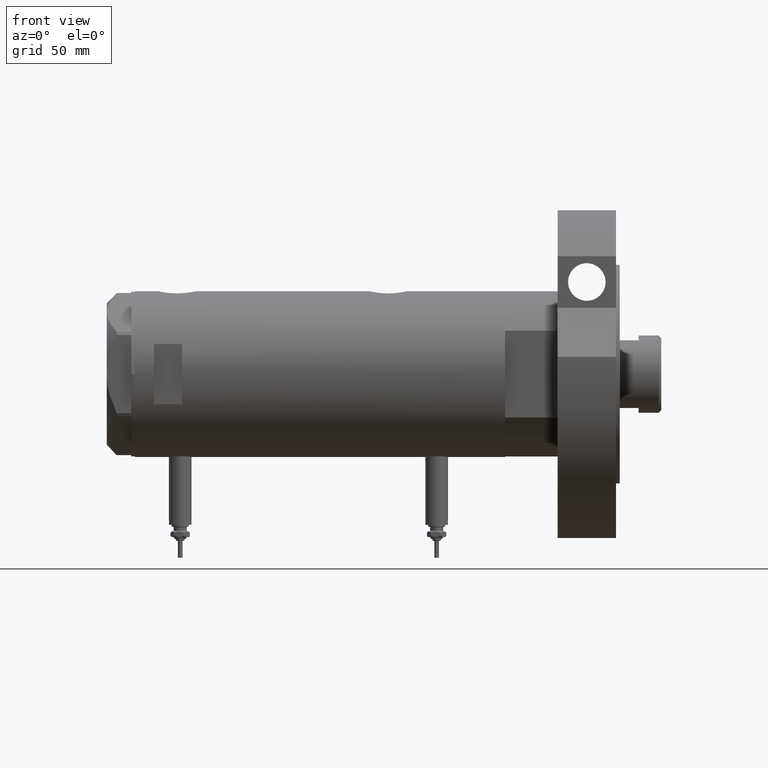
[diagram: clean part render]
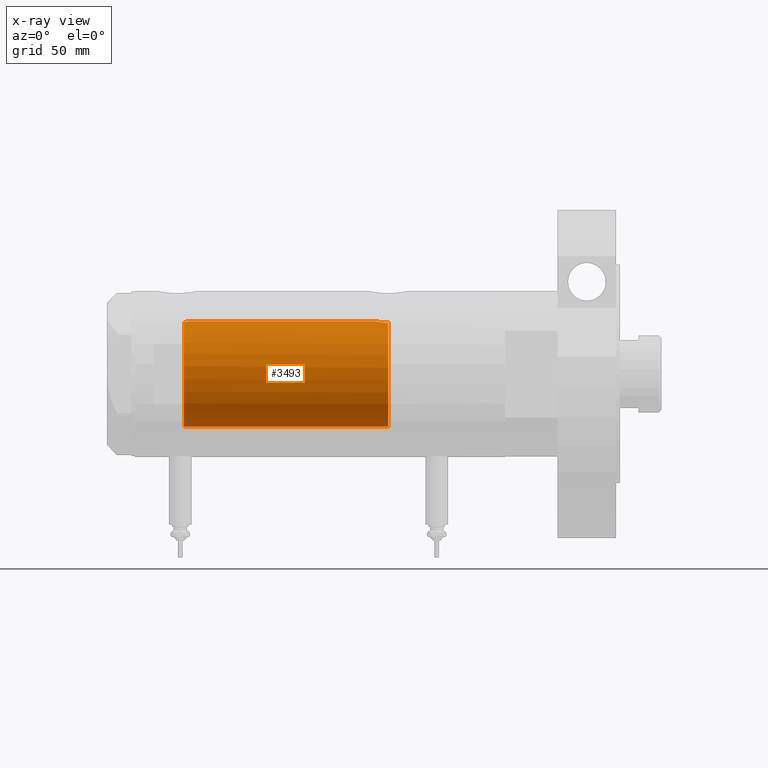
[diagram: x-ray — body ghosted, one internal face saturated and labeled with its STEP entity id]
A machine part, front view, then the same camera in x-ray: the body is ghosted and one INTERNAL B-rep face — a face not visible from any outside direction — is saturated and labeled: STEP entity #3493.
In plain terms, the highlighted cylindrical surface (partial cylindrical patch) has radius 28 mm, axis along (1, 0, -0).
Its self-contained STEP definition (entity closure, byte-faithful):
#125 = ORIENTED_EDGE ( 'NONE', *, *, #7454, .T. ) ;
#140 = EDGE_CURVE ( 'NONE', #4414, #3646, #6491, .T. ) ;
#188 = B_SPLINE_CURVE_WITH_KNOTS ( 'NONE', 3,
 ( #2715, #6235, #928, #3247, #5745, #6776, #1497, #6313, #961, #2793, #3823, #7424, #1566, #2184 ),
 .UNSPECIFIED., .F., .F.,
 ( 4, 2, 2, 2, 2, 2, 4 ),
 ( 0.000000000000000000, 0.001600622945448065652, 0.002400934418172098045, 0.003201245890896130437, 0.004001557363620162830, 0.004801868836344194355, 0.006402491781792285161 ),
 .UNSPECIFIED. ) ;
#236 = VERTEX_POINT ( 'NONE', #2494 ) ;
#372 = CARTESIAN_POINT ( 'NONE',  ( 27.22359243188621747, -6.548490838374236844, -35.32326656774585416 ) ) ;
#486 = CARTESIAN_POINT ( 'NONE',  ( 27.70817449315709169, -4.048115514111805702, -30.89463981057745912 ) ) ;
#701 = DIRECTION ( 'NONE',  ( -0.000000000000000000, -0.000000000000000000, -1.000000000000000000 ) ) ;
#727 = FACE_OUTER_BOUND ( 'NONE', #6249, .T. ) ;
#928 = CARTESIAN_POINT ( 'NONE',  ( 27.98432695902670631, -1.071102777755447377, 69.38580344277589518 ) ) ;
#935 = CARTESIAN_POINT ( 'NONE',  ( 27.77950496257091118, -3.511644525604269873, -30.53121142391830745 ) ) ;
#961 = CARTESIAN_POINT ( 'NONE',  ( 27.77532582369374481, -3.546840381797768949, 70.35134423525663294 ) ) ;
#972 = CARTESIAN_POINT ( 'NONE',  ( 27.21445766202534244, -6.585843933871727174, -35.76551644800677821 ) ) ;
#1012 = CARTESIAN_POINT ( 'NONE',  ( 27.43032278742160557, -5.620674311437154458, -32.67201933177629058 ) ) ;
#1052 = CARTESIAN_POINT ( 'NONE',  ( 27.50152613123828260, -5.265397630035340448, -32.13030070339350175 ) ) ;
#1087 = CARTESIAN_POINT ( 'NONE',  ( 28.00000000000000000, 8.058211040487717449E-16, -29.52000000000000313 ) ) ;
#1124 = AXIS2_PLACEMENT_3D ( 'NONE', #7541, #2451, #3519 ) ;
#1497 = CARTESIAN_POINT ( 'NONE',  ( 27.85549665828546750, -2.850794839423819393, 69.96367683698765916 ) ) ;
#1529 = ORIENTED_EDGE ( 'NONE', *, *, #2477, .F. ) ;
#1539 = CARTESIAN_POINT ( 'NONE',  ( 27.65700784474207552, -4.380217411398929173, -31.17047453774086563 ) ) ;
#1566 = CARTESIAN_POINT ( 'NONE',  ( 27.52591771332015114, -5.139864392033250517, 71.75689419952077230 ) ) ;
#1614 = AXIS2_PLACEMENT_3D ( 'NONE', #3832, #4023, #7547 ) ;
#1742 = VERTEX_POINT ( 'NONE', #1947 ) ;
#1947 = CARTESIAN_POINT ( 'NONE',  ( 27.21605408577812213, -6.579240077698945477, -36.20000000000000995 ) ) ;
#2112 = CARTESIAN_POINT ( 'NONE',  ( 27.80238224209238140, -3.326386449198553752, -30.41852099557870659 ) ) ;
#2125 = CARTESIAN_POINT ( 'NONE',  ( 27.46622653369042411, -5.441176343402230664, 72.20000000000001705 ) ) ;
#2184 = CARTESIAN_POINT ( 'NONE',  ( 27.46622653369042411, -5.441176343402230664, 72.20000000000001705 ) ) ;
#2235 = CARTESIAN_POINT ( 'NONE',  ( 27.34439869716138460, -6.024183900845918593, -33.44423424753807694 ) ) ;
#2451 = DIRECTION ( 'NONE',  ( 0.000000000000000000, 0.000000000000000000, 1.000000000000000000 ) ) ;
#2477 = EDGE_CURVE ( 'NONE', #1742, #5321, #3649, .T. ) ;
#2494 = CARTESIAN_POINT ( 'NONE',  ( -28.00000000000000000, 0.000000000000000000, -36.20000000000000995 ) ) ;
#2551 = EDGE_CURVE ( 'NONE', #1742, #236, #2959, .T. ) ;
#2645 = DIRECTION ( 'NONE',  ( -0.000000000000000000, -0.000000000000000000, -1.000000000000000000 ) ) ;
#2682 = CARTESIAN_POINT ( 'NONE',  ( 27.36461315879792977, -5.931995402771984338, -33.24427370164929130 ) ) ;
#2715 = CARTESIAN_POINT ( 'NONE',  ( 28.00000000000000000, 0.000000000000000000, 69.32000000000000739 ) ) ;
#2793 = CARTESIAN_POINT ( 'NONE',  ( 27.71590503262370930, -3.984646725731645578, 70.65688566206239329 ) ) ;
#2802 = LINE ( 'NONE', #6705, #6958 ) ;
#2825 = EDGE_CURVE ( 'NONE', #6210, #3646, #188, .T. ) ;
#2959 = CIRCLE ( 'NONE', #1614, 28.00000000000000000 ) ;
#3247 = CARTESIAN_POINT ( 'NONE',  ( 27.94009016578284132, -1.849003963078879931, 69.57947875320516573 ) ) ;
#3254 = CARTESIAN_POINT ( 'NONE',  ( 27.92072186409136236, -2.143620579020482975, -29.86381653969048244 ) ) ;
#3335 = CARTESIAN_POINT ( 'NONE',  ( 27.86589383012872645, -2.744524676092589210, -30.11575755532261311 ) ) ;
#3493 = ADVANCED_FACE ( 'NONE', ( #727 ), #3735, .F. ) ;
#3519 = DIRECTION ( 'NONE',  ( 1.000000000000000000, 0.000000000000000000, 0.000000000000000000 ) ) ;
#3646 = VERTEX_POINT ( 'NONE', #2125 ) ;
#3649 = B_SPLINE_CURVE_WITH_KNOTS ( 'NONE', 3,
 ( #4605, #972, #372, #5182, #7396, #2235, #2682, #6283, #1012, #1052, #7354, #1539, #486, #935, #2112, #5712, #3335, #3254, #5018, #4450, #5756, #6784, #7515, #1087 ),
 .UNSPECIFIED., .F., .F.,
 ( 4, 2, 2, 2, 2, 2, 2, 2, 2, 2, 2, 4 ),
 ( 0.01022506235776657509, 0.01152748911132702933, 0.01282991586488748358, 0.01348112924166770983, 0.01413234261844793782, 0.01543476937200839033, 0.01673719612556884284, 0.01738840950234906910, 0.01803962287912929535, 0.01934204963268974786, 0.01999326300946997065, 0.02064447638625019690 ),
 .UNSPECIFIED. ) ;
#3735 = CYLINDRICAL_SURFACE ( 'NONE', #6751, 28.00000000000000000 ) ;
#3823 = CARTESIAN_POINT ( 'NONE',  ( 27.68450581507584474, -4.196237264393388067, 70.82467802964416137 ) ) ;
#3832 = CARTESIAN_POINT ( 'NONE',  ( 0.000000000000000000, 0.000000000000000000, -36.20000000000000995 ) ) ;
#3836 = ORIENTED_EDGE ( 'NONE', *, *, #2825, .F. ) ;
#4023 = DIRECTION ( 'NONE',  ( 0.000000000000000000, 0.000000000000000000, -1.000000000000000000 ) ) ;
#4210 = CARTESIAN_POINT ( 'NONE',  ( -28.00000000000000000, 0.000000000000000000, 98.20000000000000284 ) ) ;
#4273 = DIRECTION ( 'NONE',  ( -0.000000000000000000, -0.000000000000000000, -1.000000000000000000 ) ) ;
#4349 = CARTESIAN_POINT ( 'NONE',  ( 28.00000000000000000, 8.058211040487717449E-16, -29.52000000000000313 ) ) ;
#4414 = VERTEX_POINT ( 'NONE', #5881 ) ;
#4450 = CARTESIAN_POINT ( 'NONE',  ( 27.97963188585489647, -1.089002775846582782, -29.60708365738664227 ) ) ;
#4605 = CARTESIAN_POINT ( 'NONE',  ( 27.21605408577812213, -6.579240077698945477, -36.20000000000000995 ) ) ;
#4800 = ORIENTED_EDGE ( 'NONE', *, *, #140, .T. ) ;
#4875 = VECTOR ( 'NONE', #701, 1000.000000000000000 ) ;
#4891 = ORIENTED_EDGE ( 'NONE', *, *, #2551, .T. ) ;
#5018 = CARTESIAN_POINT ( 'NONE',  ( 27.94978721344213923, -1.729827962054682589, -29.73650615356604021 ) ) ;
#5182 = CARTESIAN_POINT ( 'NONE',  ( 27.26146154097650154, -6.389008671741151169, -34.46702257288443860 ) ) ;
#5321 = VERTEX_POINT ( 'NONE', #4349 ) ;
#5386 = CARTESIAN_POINT ( 'NONE',  ( 0.000000000000000000, 0.000000000000000000, 98.20000000000000284 ) ) ;
#5712 = CARTESIAN_POINT ( 'NONE',  ( 27.84562549742225457, -2.942523713096127924, -30.21055141078906203 ) ) ;
#5745 = CARTESIAN_POINT ( 'NONE',  ( 27.92172852149584727, -2.107204279616225140, 69.66075932795375536 ) ) ;
#5756 = CARTESIAN_POINT ( 'NONE',  ( 27.98730817101646906, -0.8707001454186235057, -29.57418472479974980 ) ) ;
#5828 = CARTESIAN_POINT ( 'NONE',  ( 28.00000000000000000, 0.000000000000000000, 69.32000000000000739 ) ) ;
#5881 = CARTESIAN_POINT ( 'NONE',  ( -28.00000000000000000, 0.000000000000000000, 72.20000000000001705 ) ) ;
#5969 = ORIENTED_EDGE ( 'NONE', *, *, #6759, .F. ) ;
#6075 = DIRECTION ( 'NONE',  ( -1.000000000000000000, 0.000000000000000000, 0.000000000000000000 ) ) ;
#6210 = VERTEX_POINT ( 'NONE', #5828 ) ;
#6235 = CARTESIAN_POINT ( 'NONE',  ( 28.00000000000001066, -0.5413643627070152675, 69.31999999999999318 ) ) ;
#6249 = EDGE_LOOP ( 'NONE', ( #3836, #125, #1529, #4891, #5969, #4800 ) ) ;
#6283 = CARTESIAN_POINT ( 'NONE',  ( 27.40754191563010522, -5.730381220489952021, -32.85863096555545582 ) ) ;
#6313 = CARTESIAN_POINT ( 'NONE',  ( 27.80347162683809259, -3.320043793664065657, 70.21279742576766125 ) ) ;
#6491 = CIRCLE ( 'NONE', #1124, 28.00000000000000000 ) ;
#6622 = LINE ( 'NONE', #4210, #4875 ) ;
#6705 = CARTESIAN_POINT ( 'NONE',  ( 28.00000000000000000, 3.429011037612589276E-15, 98.20000000000000284 ) ) ;
#6751 = AXIS2_PLACEMENT_3D ( 'NONE', #5386, #4273, #6075 ) ;
#6759 = EDGE_CURVE ( 'NONE', #4414, #236, #6622, .T. ) ;
#6776 = CARTESIAN_POINT ( 'NONE',  ( 27.87937907436173646, -2.608343522657388114, 69.85310177797241238 ) ) ;
#6784 = CARTESIAN_POINT ( 'NONE',  ( 27.99747352180820315, -0.4347571716796930219, -29.53072531013188140 ) ) ;
#6958 = VECTOR ( 'NONE', #2645, 1000.000000000000000 ) ;
#7354 = CARTESIAN_POINT ( 'NONE',  ( 27.55308463769900840, -4.992385646466229510, -31.79156508565563755 ) ) ;
#7396 = CARTESIAN_POINT ( 'NONE',  ( 27.28993558706077849, -6.267945658363888839, -34.05080727201161750 ) ) ;
#7424 = CARTESIAN_POINT ( 'NONE',  ( 27.59002303441815229, -4.790793940098342141, 71.35816176521460363 ) ) ;
#7454 = EDGE_CURVE ( 'NONE', #6210, #5321, #2802, .T. ) ;
#7515 = CARTESIAN_POINT ( 'NONE',  ( 28.00000000000001776, -0.2171842281426363264, -29.52000000000002089 ) ) ;
#7541 = CARTESIAN_POINT ( 'NONE',  ( 0.000000000000000000, 0.000000000000000000, 72.20000000000001705 ) ) ;
#7547 = DIRECTION ( 'NONE',  ( -1.000000000000000000, 0.000000000000000000, 0.000000000000000000 ) ) ;